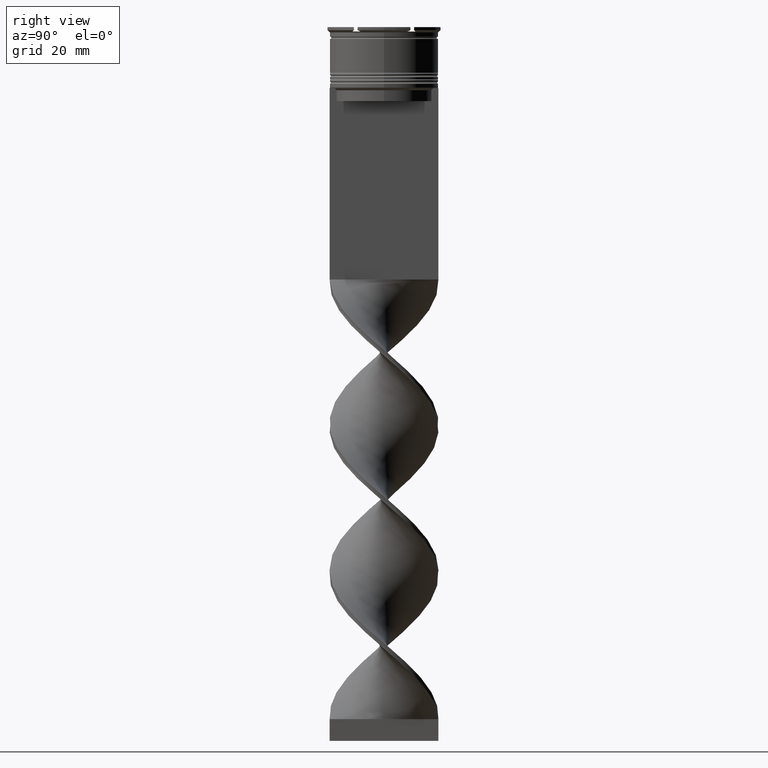
[diagram: clean part render]
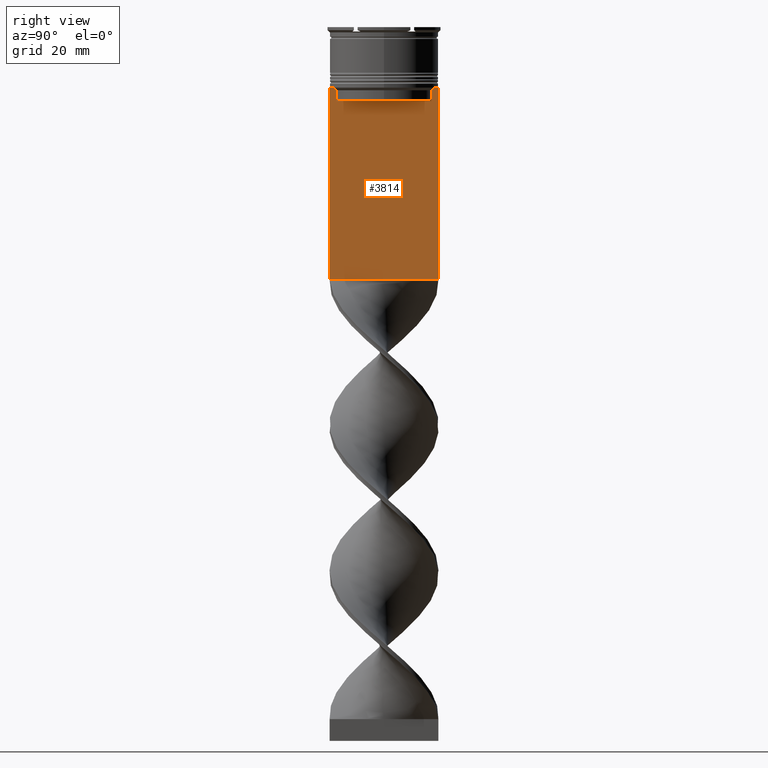
[diagram: same view with one face highlighted and labeled with its STEP entity id]
A machine part, right view. The second image highlights one B-rep face of the part: STEP entity #3814.
In plain terms, the highlighted planar face has unit normal (-1, 0, 0).
Its self-contained STEP definition (entity closure, byte-faithful):
#15 = VECTOR ( 'NONE', #2571, 1000.000000000000000 ) ;
#97 = CARTESIAN_POINT ( 'NONE',  ( 0.7500000000000002220, -12.50000000000000000, -58.00000000000000000 ) ) ;
#117 = VECTOR ( 'NONE', #2838, 1000.000000000000000 ) ;
#150 = EDGE_CURVE ( 'NONE', #3017, #2207, #267, .T. ) ;
#267 = LINE ( 'NONE', #1925, #15 ) ;
#324 = EDGE_CURVE ( 'NONE', #637, #3073, #3591, .T. ) ;
#371 = LINE ( 'NONE', #1904, #3512 ) ;
#405 = CARTESIAN_POINT ( 'NONE',  ( 0.7500000000000002220, -10.87416663473574019, -17.00000000000000000 ) ) ;
#446 = AXIS2_PLACEMENT_3D ( 'NONE', #3560, #1961, #1314 ) ;
#567 = VECTOR ( 'NONE', #1332, 1000.000000000000000 ) ;
#596 = ORIENTED_EDGE ( 'NONE', *, *, #324, .T. ) ;
#611 = CARTESIAN_POINT ( 'NONE',  ( 0.7500000000000002220, -12.50000000000000000, 11.04495957273638673 ) ) ;
#616 = CARTESIAN_POINT ( 'NONE',  ( 0.7500000000000002220, -10.87416663473574197, -14.50000000000000000 ) ) ;
#637 = VERTEX_POINT ( 'NONE', #2837 ) ;
#645 = VERTEX_POINT ( 'NONE', #2242 ) ;
#697 = CARTESIAN_POINT ( 'NONE',  ( 0.7500000000000002220, -12.50000000000000000, -14.00000000000000178 ) ) ;
#707 = VECTOR ( 'NONE', #1944, 1000.000000000000000 ) ;
#710 = CARTESIAN_POINT ( 'NONE',  ( 0.7500000000000002220, -12.50000000000000000, -14.00000000000000178 ) ) ;
#732 = ORIENTED_EDGE ( 'NONE', *, *, #3032, .T. ) ;
#757 = CARTESIAN_POINT ( 'NONE',  ( 0.7500000000000002220, 12.37729776647553059, -14.00000000000000178 ) ) ;
#1103 = ORIENTED_EDGE ( 'NONE', *, *, #1613, .T. ) ;
#1105 = EDGE_CURVE ( 'NONE', #4143, #645, #2370, .T. ) ;
#1146 = VERTEX_POINT ( 'NONE', #3775 ) ;
#1249 = ORIENTED_EDGE ( 'NONE', *, *, #2603, .T. ) ;
#1280 = VERTEX_POINT ( 'NONE', #3136 ) ;
#1314 = DIRECTION ( 'NONE',  ( 0.000000000000000000, 0.000000000000000000, 1.000000000000000000 ) ) ;
#1332 = DIRECTION ( 'NONE',  ( 0.000000000000000000, -1.000000000000000000, 0.000000000000000000 ) ) ;
#1416 = B_SPLINE_CURVE_WITH_KNOTS ( 'NONE', 3,
 ( #616, #3222, #1571, #1547 ),
 .UNSPECIFIED., .F., .F.,
 ( 4, 4 ),
 ( 0.05009718908159448147, 0.05081156920313959630 ),
 .UNSPECIFIED. ) ;
#1424 = ORIENTED_EDGE ( 'NONE', *, *, #2955, .T. ) ;
#1452 = ORIENTED_EDGE ( 'NONE', *, *, #1105, .T. ) ;
#1498 = DIRECTION ( 'NONE',  ( 0.000000000000000000, -1.000000000000000000, 0.000000000000000000 ) ) ;
#1547 = CARTESIAN_POINT ( 'NONE',  ( 0.7500000000000002220, -11.37530219378809093, -14.00000000000000178 ) ) ;
#1571 = CARTESIAN_POINT ( 'NONE',  ( 0.7500000000000002220, -11.20826532207830439, -14.16667499063191826 ) ) ;
#1613 = EDGE_CURVE ( 'NONE', #2637, #4143, #371, .T. ) ;
#1615 = VERTEX_POINT ( 'NONE', #2298 ) ;
#1672 = FACE_OUTER_BOUND ( 'NONE', #3968, .T. ) ;
#1693 = LINE ( 'NONE', #97, #2935 ) ;
#1714 = CARTESIAN_POINT ( 'NONE',  ( 0.7500000000000002220, -10.87416663473574197, -14.50000000000000000 ) ) ;
#1723 = VECTOR ( 'NONE', #3429, 1000.000000000000000 ) ;
#1788 = ORIENTED_EDGE ( 'NONE', *, *, #2868, .T. ) ;
#1883 = DIRECTION ( 'NONE',  ( 0.000000000000000000, -1.000000000000000000, 0.000000000000000000 ) ) ;
#1894 = DIRECTION ( 'NONE',  ( 0.000000000000000000, 0.000000000000000000, -1.000000000000000000 ) ) ;
#1896 = CARTESIAN_POINT ( 'NONE',  ( 0.7500000000000002220, 12.50000000000000000, 11.04495957273638673 ) ) ;
#1904 = CARTESIAN_POINT ( 'NONE',  ( 0.7500000000000002220, -12.50000000000000000, -14.00000000000000178 ) ) ;
#1925 = CARTESIAN_POINT ( 'NONE',  ( 0.7500000000000002220, -10.87416663473574197, 0.000000000000000000 ) ) ;
#1944 = DIRECTION ( 'NONE',  ( 0.000000000000000000, -1.000000000000000000, 0.000000000000000000 ) ) ;
#1961 = DIRECTION ( 'NONE',  ( -1.000000000000000000, 0.000000000000000000, 0.000000000000000000 ) ) ;
#2014 = LINE ( 'NONE', #3673, #1723 ) ;
#2049 = CARTESIAN_POINT ( 'NONE',  ( 0.7500000000000002220, -12.50000000000000000, -14.00000000000000178 ) ) ;
#2160 = LINE ( 'NONE', #1896, #117 ) ;
#2207 = VERTEX_POINT ( 'NONE', #1714 ) ;
#2232 = ORIENTED_EDGE ( 'NONE', *, *, #2620, .T. ) ;
#2242 = CARTESIAN_POINT ( 'NONE',  ( 0.7500000000000002220, 11.37530219378809093, -14.00000000000000178 ) ) ;
#2286 = DIRECTION ( 'NONE',  ( 0.000000000000000000, 1.000000000000000000, 0.000000000000000000 ) ) ;
#2298 = CARTESIAN_POINT ( 'NONE',  ( 0.7500000000000002220, 10.87416663473574197, -14.50000000000000000 ) ) ;
#2370 = LINE ( 'NONE', #2049, #3503 ) ;
#2403 = ORIENTED_EDGE ( 'NONE', *, *, #150, .T. ) ;
#2438 = EDGE_CURVE ( 'NONE', #1146, #637, #2911, .T. ) ;
#2486 = VERTEX_POINT ( 'NONE', #3869 ) ;
#2552 = CARTESIAN_POINT ( 'NONE',  ( 0.7500000000000002220, 12.50000000000000000, -14.00000000000000178 ) ) ;
#2571 = DIRECTION ( 'NONE',  ( -0.000000000000000000, -0.000000000000000000, 1.000000000000000000 ) ) ;
#2603 = EDGE_CURVE ( 'NONE', #2207, #1146, #1416, .T. ) ;
#2620 = EDGE_CURVE ( 'NONE', #2486, #3017, #3164, .T. ) ;
#2637 = VERTEX_POINT ( 'NONE', #2552 ) ;
#2677 = VECTOR ( 'NONE', #1894, 1000.000000000000000 ) ;
#2837 = CARTESIAN_POINT ( 'NONE',  ( 0.7500000000000002220, -12.37729776647553059, -14.00000000000000178 ) ) ;
#2838 = DIRECTION ( 'NONE',  ( 0.000000000000000000, 0.000000000000000000, -1.000000000000000000 ) ) ;
#2859 = ORIENTED_EDGE ( 'NONE', *, *, #3993, .T. ) ;
#2868 = EDGE_CURVE ( 'NONE', #1615, #2486, #2014, .T. ) ;
#2891 = CARTESIAN_POINT ( 'NONE',  ( 0.7500000000000002220, 12.50000000000000000, -58.00000000000000000 ) ) ;
#2911 = LINE ( 'NONE', #697, #567 ) ;
#2935 = VECTOR ( 'NONE', #2286, 1000.000000000000000 ) ;
#2955 = EDGE_CURVE ( 'NONE', #3073, #1280, #3806, .T. ) ;
#2981 = CARTESIAN_POINT ( 'NONE',  ( 0.7500000000000002220, 10.87416663473574197, -14.50000000000000000 ) ) ;
#3003 = CARTESIAN_POINT ( 'NONE',  ( 0.7500000000000002220, 11.20826531587977648, -14.16667499681701514 ) ) ;
#3017 = VERTEX_POINT ( 'NONE', #405 ) ;
#3032 = EDGE_CURVE ( 'NONE', #1280, #3360, #1693, .T. ) ;
#3073 = VERTEX_POINT ( 'NONE', #3955 ) ;
#3136 = CARTESIAN_POINT ( 'NONE',  ( 0.7500000000000002220, -12.50000000000000000, -58.00000000000000000 ) ) ;
#3164 = LINE ( 'NONE', #4122, #707 ) ;
#3222 = CARTESIAN_POINT ( 'NONE',  ( 0.7500000000000002220, -11.04122051801870441, -14.33334204001847567 ) ) ;
#3360 = VERTEX_POINT ( 'NONE', #2891 ) ;
#3429 = DIRECTION ( 'NONE',  ( 0.000000000000000000, 0.000000000000000000, -1.000000000000000000 ) ) ;
#3503 = VECTOR ( 'NONE', #1498, 1000.000000000000000 ) ;
#3512 = VECTOR ( 'NONE', #1883, 1000.000000000000000 ) ;
#3560 = CARTESIAN_POINT ( 'NONE',  ( 0.7500000000000002220, -12.50000000000000000, 11.04495957273638673 ) ) ;
#3591 = LINE ( 'NONE', #710, #3771 ) ;
#3608 = EDGE_CURVE ( 'NONE', #2637, #3360, #2160, .T. ) ;
#3629 = B_SPLINE_CURVE_WITH_KNOTS ( 'NONE', 3,
 ( #4016, #3003, #3976, #2981 ),
 .UNSPECIFIED., .F., .F.,
 ( 4, 4 ),
 ( 0.01936090553552769281, 0.02006881572333104116 ),
 .UNSPECIFIED. ) ;
#3673 = CARTESIAN_POINT ( 'NONE',  ( 0.7500000000000002220, 10.87416663473574197, 0.000000000000000000 ) ) ;
#3734 = ORIENTED_EDGE ( 'NONE', *, *, #2438, .T. ) ;
#3771 = VECTOR ( 'NONE', #4079, 1000.000000000000000 ) ;
#3775 = CARTESIAN_POINT ( 'NONE',  ( 0.7500000000000002220, -11.37530219378809093, -14.00000000000000178 ) ) ;
#3806 = LINE ( 'NONE', #611, #2677 ) ;
#3814 = ADVANCED_FACE ( 'NONE', ( #1672 ), #3875, .F. ) ;
#3869 = CARTESIAN_POINT ( 'NONE',  ( 0.7500000000000002220, 10.87416663473574019, -17.00000000000000000 ) ) ;
#3875 = PLANE ( 'NONE',  #446 ) ;
#3955 = CARTESIAN_POINT ( 'NONE',  ( 0.7500000000000002220, -12.50000000000000000, -14.00000000000000178 ) ) ;
#3968 = EDGE_LOOP ( 'NONE', ( #1452, #2859, #1788, #2232, #2403, #1249, #3734, #596, #1424, #732, #4123, #1103 ) ) ;
#3976 = CARTESIAN_POINT ( 'NONE',  ( 0.7500000000000002220, 11.04122051153452055, -14.33334204648729404 ) ) ;
#3993 = EDGE_CURVE ( 'NONE', #645, #1615, #3629, .T. ) ;
#4016 = CARTESIAN_POINT ( 'NONE',  ( 0.7500000000000002220, 11.37530219378809093, -14.00000000000000178 ) ) ;
#4079 = DIRECTION ( 'NONE',  ( 0.000000000000000000, -1.000000000000000000, 0.000000000000000000 ) ) ;
#4122 = CARTESIAN_POINT ( 'NONE',  ( 0.7500000000000002220, 10.90000000000000213, -17.00000000000000000 ) ) ;
#4123 = ORIENTED_EDGE ( 'NONE', *, *, #3608, .F. ) ;
#4143 = VERTEX_POINT ( 'NONE', #757 ) ;